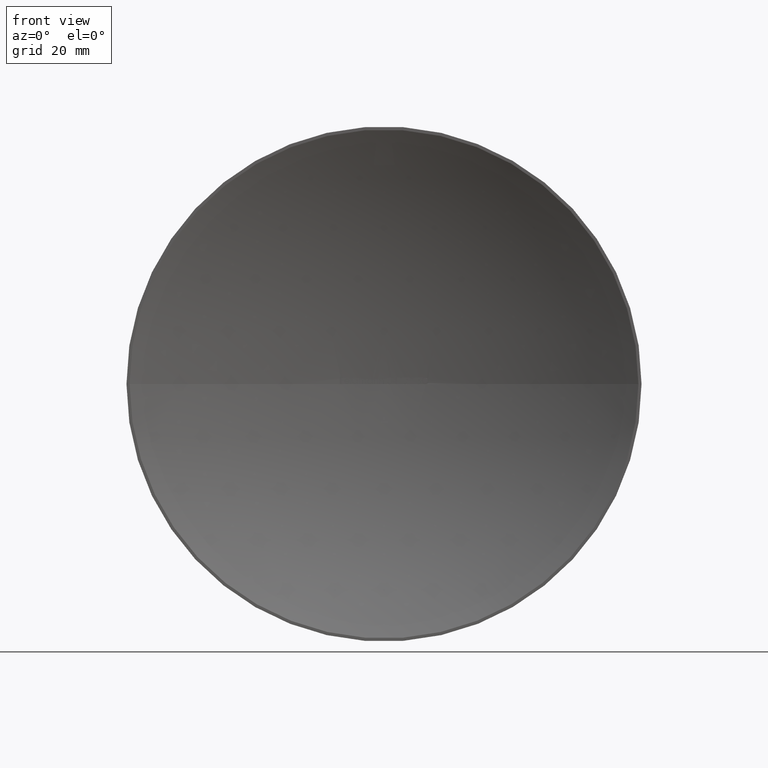
[diagram: clean part render]
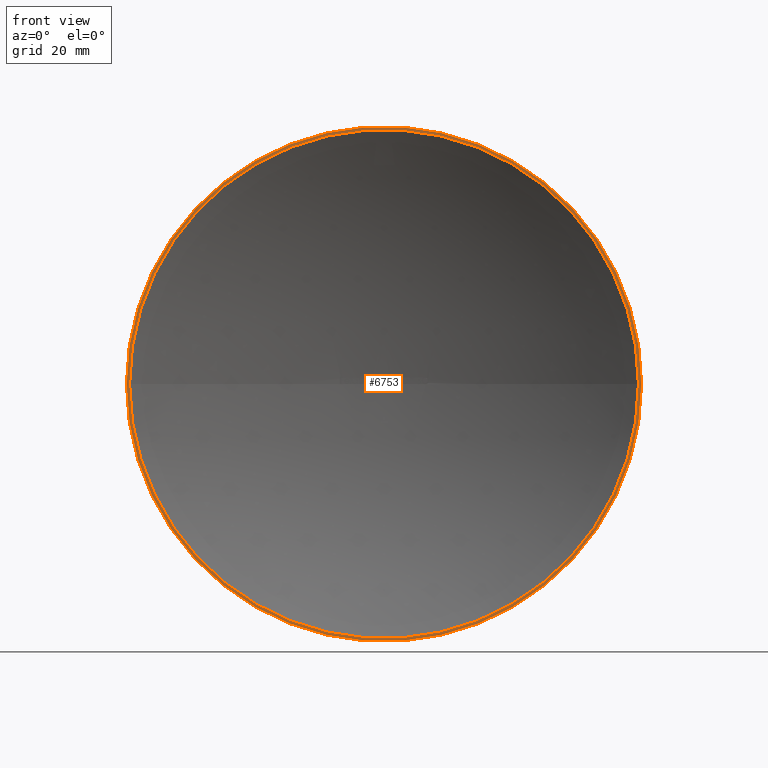
[diagram: same view with one face highlighted and labeled with its STEP entity id]
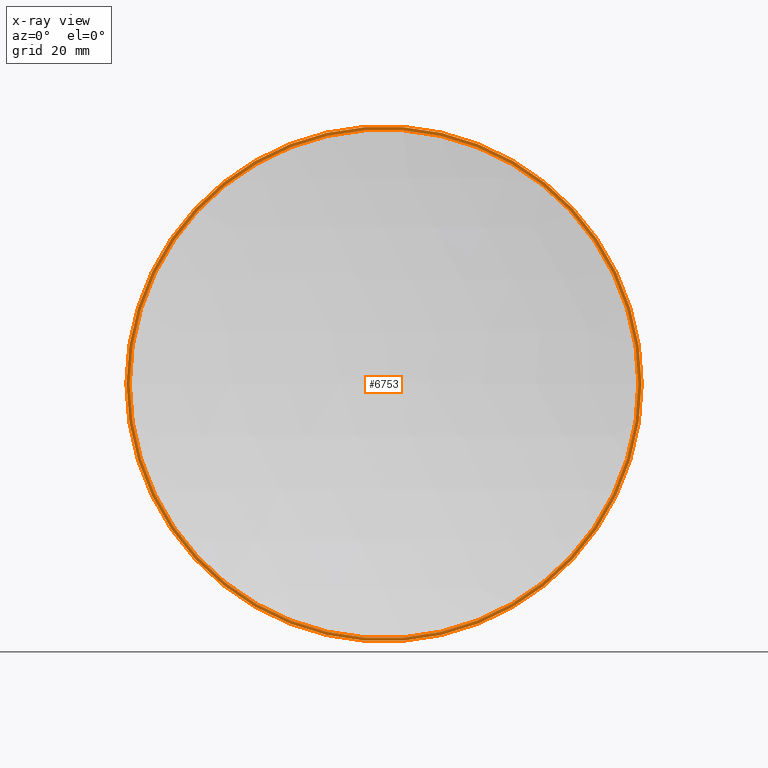
[diagram: x-ray of the same camera — body ghosted, the highlighted face saturated]
A machine part, front view. The second image highlights one B-rep face of the part: STEP entity #6753.
The next image is the same camera in x-ray: the body ghosted, the highlighted face saturated — about 0% of this face is hidden behind the body in this view.
In plain terms, the highlighted planar face has unit normal (-0, -1, 0).
Its self-contained STEP definition (entity closure, byte-faithful):
#16 = EDGE_CURVE ( 'NONE', #6951, #8448, #4624, .T. ) ;
#110 = DIRECTION ( 'NONE',  ( -9.500868650831540200E-015, -1.000000000000000000, -0.0000000000000000000 ) ) ;
#402 = EDGE_CURVE ( 'NONE', #8448, #6951, #3946, .T. ) ;
#1407 = CARTESIAN_POINT ( 'NONE',  ( 50.18107212884156400, 1.425904197968325600E-016, -6.145408936036714700E-015 ) ) ;
#1866 = AXIS2_PLACEMENT_3D ( 'NONE', #5643, #5685, #8383 ) ;
#2080 = ORIENTED_EDGE ( 'NONE', *, *, #402, .T. ) ;
#2081 = DIRECTION ( 'NONE',  ( 1.000000000000000000, -9.500868650831540200E-015, 0.0000000000000000000 ) ) ;
#2149 = EDGE_CURVE ( 'NONE', #9976, #5680, #8928, .T. ) ;
#2220 = DIRECTION ( 'NONE',  ( 1.000000000000000000, -9.500868650831538600E-015, 0.0000000000000000000 ) ) ;
#2223 = DIRECTION ( 'NONE',  ( -9.500868650831540200E-015, -1.000000000000000000, 0.0000000000000000000 ) ) ;
#3836 = CARTESIAN_POINT ( 'NONE',  ( 50.80000000000000400, -1.675728383987930700E-015, 0.0000000000000000000 ) ) ;
#3946 = CIRCLE ( 'NONE', #6650, 50.80000000000012500 ) ;
#4054 = CARTESIAN_POINT ( 'NONE',  ( -50.80000000000023900, 9.666319772597724300E-013, 6.221205739668571900E-015 ) ) ;
#4532 = ORIENTED_EDGE ( 'NONE', *, *, #2149, .F. ) ;
#4578 = EDGE_CURVE ( 'NONE', #5680, #9976, #10205, .T. ) ;
#4624 = CIRCLE ( 'NONE', #7684, 50.80000000000012500 ) ;
#5440 = CARTESIAN_POINT ( 'NONE',  ( 50.80000000000000400, 1.343722335285802000E-015, 0.0000000000000000000 ) ) ;
#5544 = ORIENTED_EDGE ( 'NONE', *, *, #16, .T. ) ;
#5643 = CARTESIAN_POINT ( 'NONE',  ( -1.187608581353896100E-013, 4.770489558936219500E-013, 0.0000000000000000000 ) ) ;
#5661 = CARTESIAN_POINT ( 'NONE',  ( -1.187608581353896100E-013, 4.770489558936219500E-013, 0.0000000000000000000 ) ) ;
#5680 = VERTEX_POINT ( 'NONE', #11186 ) ;
#5685 = DIRECTION ( 'NONE',  ( -9.500868650831540200E-015, -1.000000000000000000, -0.0000000000000000000 ) ) ;
#5741 = DIRECTION ( 'NONE',  ( 1.000000000000000000, -9.500868650831541800E-015, 0.0000000000000000000 ) ) ;
#5778 = AXIS2_PLACEMENT_3D ( 'NONE', #3836, #2223, #2081 ) ;
#5787 = DIRECTION ( 'NONE',  ( -9.500868650831540200E-015, -1.000000000000000000, -0.0000000000000000000 ) ) ;
#6188 = AXIS2_PLACEMENT_3D ( 'NONE', #5661, #9236, #5741 ) ;
#6650 = AXIS2_PLACEMENT_3D ( 'NONE', #9923, #110, #10783 ) ;
#6753 = ADVANCED_FACE ( 'NONE', ( #8362, #7390 ), #9162, .T. ) ;
#6951 = VERTEX_POINT ( 'NONE', #5440 ) ;
#7223 = EDGE_LOOP ( 'NONE', ( #5544, #2080 ) ) ;
#7390 = FACE_BOUND ( 'NONE', #8191, .T. ) ;
#7514 = ORIENTED_EDGE ( 'NONE', *, *, #4578, .F. ) ;
#7684 = AXIS2_PLACEMENT_3D ( 'NONE', #9279, #5787, #2220 ) ;
#8191 = EDGE_LOOP ( 'NONE', ( #7514, #4532 ) ) ;
#8362 = FACE_OUTER_BOUND ( 'NONE', #7223, .T. ) ;
#8383 = DIRECTION ( 'NONE',  ( 1.000000000000000000, -9.500868650831541800E-015, 0.0000000000000000000 ) ) ;
#8448 = VERTEX_POINT ( 'NONE', #4054 ) ;
#8928 = CIRCLE ( 'NONE', #6188, 50.18107212884167700 ) ;
#9162 = PLANE ( 'NONE',  #5778 ) ;
#9236 = DIRECTION ( 'NONE',  ( -9.500868650831540200E-015, -1.000000000000000000, -0.0000000000000000000 ) ) ;
#9279 = CARTESIAN_POINT ( 'NONE',  ( -1.187608581353895600E-013, 4.839878497975291800E-013, 0.0000000000000000000 ) ) ;
#9923 = CARTESIAN_POINT ( 'NONE',  ( -1.187608581353895600E-013, 4.839878497975291800E-013, 0.0000000000000000000 ) ) ;
#9976 = VERTEX_POINT ( 'NONE', #1407 ) ;
#10205 = CIRCLE ( 'NONE', #1866, 50.18107212884167700 ) ;
#10783 = DIRECTION ( 'NONE',  ( 1.000000000000000000, -9.500868650831538600E-015, 0.0000000000000000000 ) ) ;
#11186 = CARTESIAN_POINT ( 'NONE',  ( -50.18107212884076800, 9.487511509395166600E-013, 0.0000000000000000000 ) ) ;